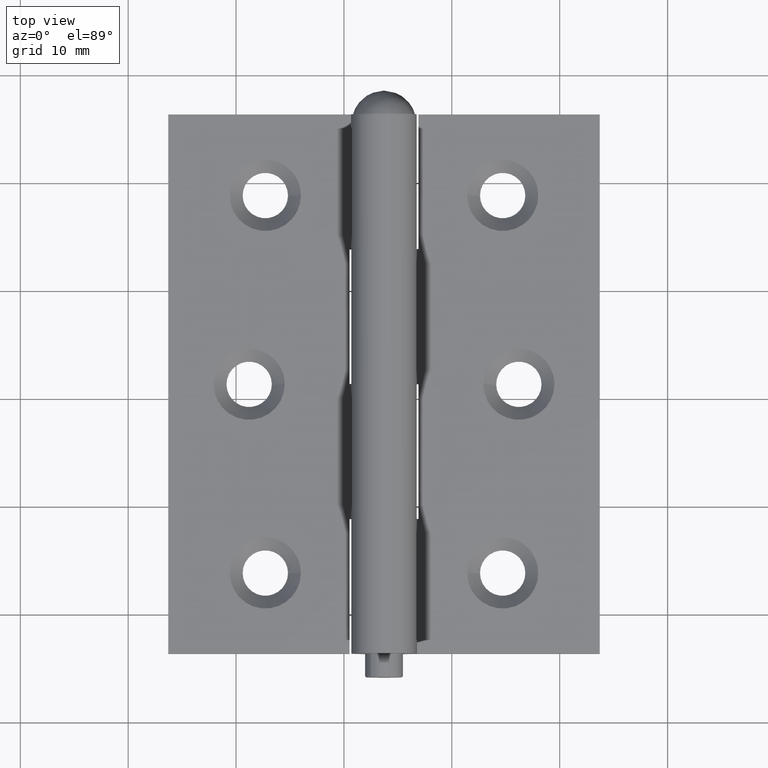
[diagram: clean part render]
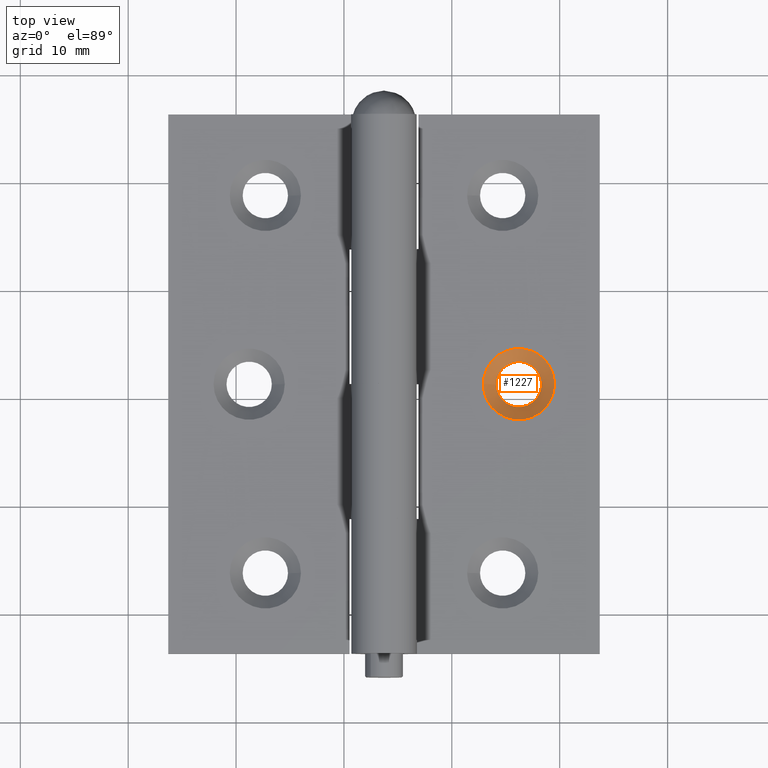
[diagram: same view with one face highlighted and labeled with its STEP entity id]
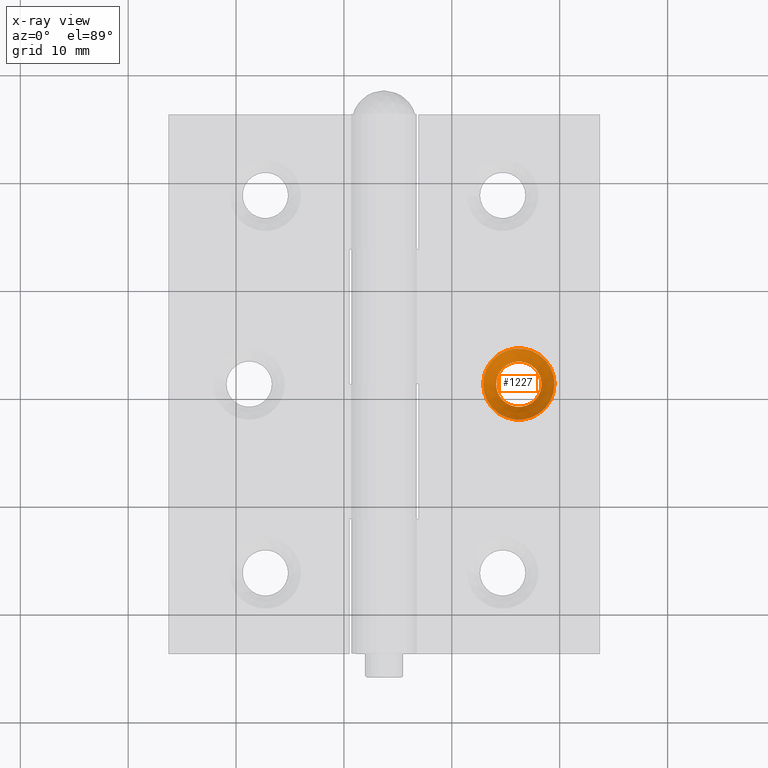
[diagram: x-ray of the same camera — body ghosted, the highlighted face saturated]
A machine part, top view. The second image highlights one B-rep face of the part: STEP entity #1227.
The next image is the same camera in x-ray: the body ghosted, the highlighted face saturated — about 0% of this face is hidden behind the body in this view.
In plain terms, the highlighted conical surface has half-angle 45 deg.
Its self-contained STEP definition (entity closure, byte-faithful):
#345 = ORIENTED_EDGE ( 'NONE', *, *, #9716, .F. ) ;
#850 = EDGE_LOOP ( 'NONE', ( #345 ) ) ;
#964 = CARTESIAN_POINT ( 'NONE',  ( -15.80000000000000782, -1.530808498934191916E-15, -0.6500000000000000222 ) ) ;
#1075 = CARTESIAN_POINT ( 'NONE',  ( -12.50000000000000355, -1.530808498934191916E-15, -1.849999999999999867 ) ) ;
#1227 = ADVANCED_FACE ( 'NONE', ( #8609, #7160 ), #9653, .F. ) ;
#1807 = DIRECTION ( 'NONE',  ( 1.000000000000000000, 0.000000000000000000, 0.000000000000000000 ) ) ;
#2131 = EDGE_CURVE ( 'NONE', #9803, #9803, #8873, .T. ) ;
#2515 = AXIS2_PLACEMENT_3D ( 'NONE', #1075, #10234, #4329 ) ;
#4161 = VERTEX_POINT ( 'NONE', #6835 ) ;
#4257 = DIRECTION ( 'NONE',  ( 0.000000000000000000, 0.000000000000000000, 1.000000000000000000 ) ) ;
#4329 = DIRECTION ( 'NONE',  ( 1.000000000000000000, 0.000000000000000000, 0.000000000000000000 ) ) ;
#5933 = CARTESIAN_POINT ( 'NONE',  ( -12.50000000000000355, -1.530808498934191916E-15, -0.6500000000000000222 ) ) ;
#5935 = AXIS2_PLACEMENT_3D ( 'NONE', #5933, #6687, #6786 ) ;
#6130 = CIRCLE ( 'NONE', #2515, 2.100000000000000977 ) ;
#6637 = AXIS2_PLACEMENT_3D ( 'NONE', #6837, #4257, #1807 ) ;
#6687 = DIRECTION ( 'NONE',  ( 0.000000000000000000, 0.000000000000000000, -1.000000000000000000 ) ) ;
#6786 = DIRECTION ( 'NONE',  ( -1.000000000000000000, 0.000000000000000000, 0.000000000000000000 ) ) ;
#6793 = EDGE_LOOP ( 'NONE', ( #10033 ) ) ;
#6835 = CARTESIAN_POINT ( 'NONE',  ( -10.40000000000000213, -1.530808498934191916E-15, -1.849999999999999867 ) ) ;
#6837 = CARTESIAN_POINT ( 'NONE',  ( -12.50000000000000355, -1.530808498934191916E-15, -1.849999999999996980 ) ) ;
#7160 = FACE_BOUND ( 'NONE', #850, .T. ) ;
#8609 = FACE_OUTER_BOUND ( 'NONE', #6793, .T. ) ;
#8873 = CIRCLE ( 'NONE', #5935, 3.300000000000004263 ) ;
#9653 = CONICAL_SURFACE ( 'NONE', #6637, 2.100000000000000977, 0.7853981633974509435 ) ;
#9716 = EDGE_CURVE ( 'NONE', #4161, #4161, #6130, .T. ) ;
#9803 = VERTEX_POINT ( 'NONE', #964 ) ;
#10033 = ORIENTED_EDGE ( 'NONE', *, *, #2131, .F. ) ;
#10234 = DIRECTION ( 'NONE',  ( 0.000000000000000000, 0.000000000000000000, 1.000000000000000000 ) ) ;